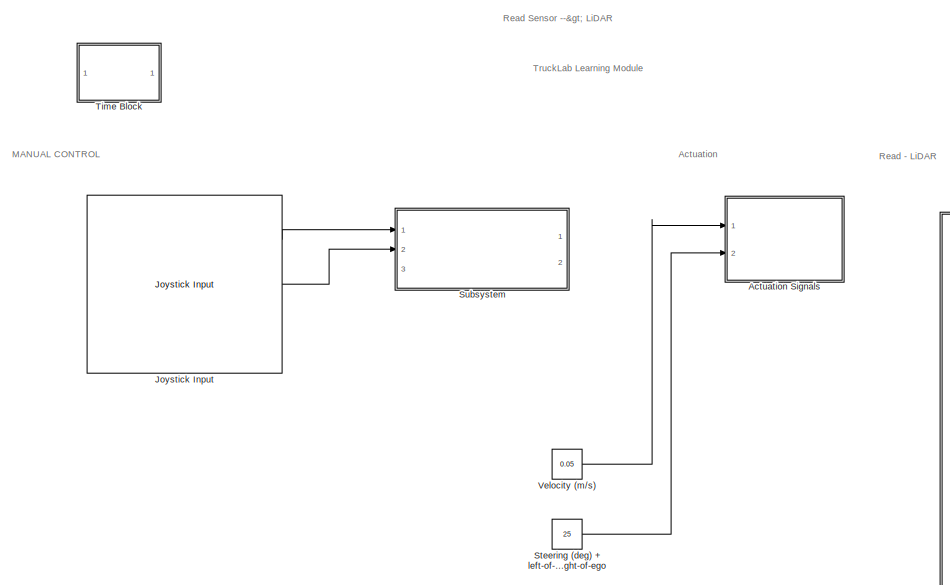
[diagram: root canvas - part 1/2, left side, full height]
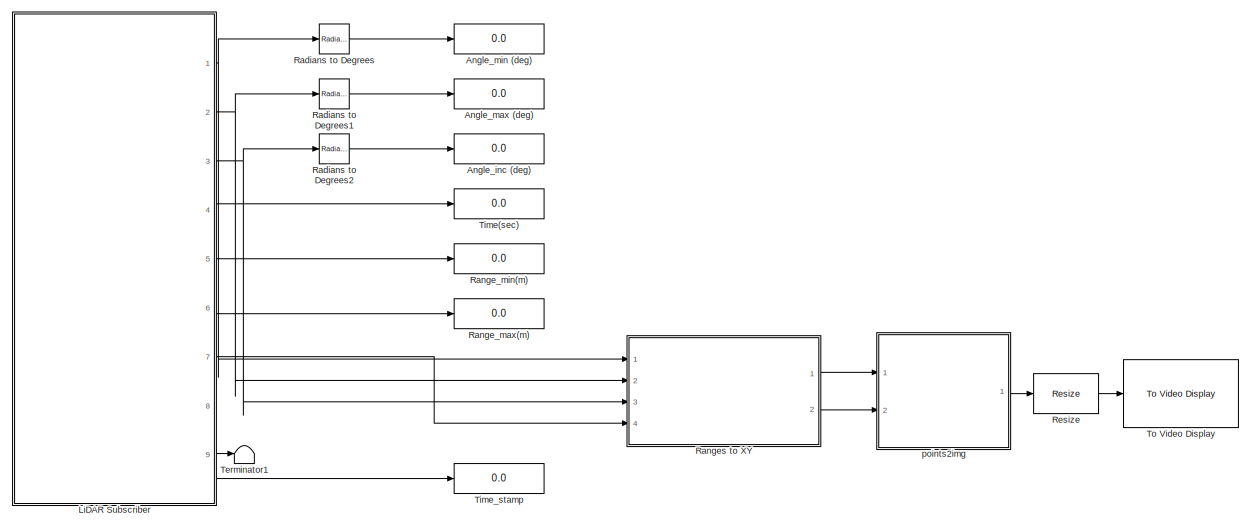
[diagram: root canvas - part 2/2, middle right region]
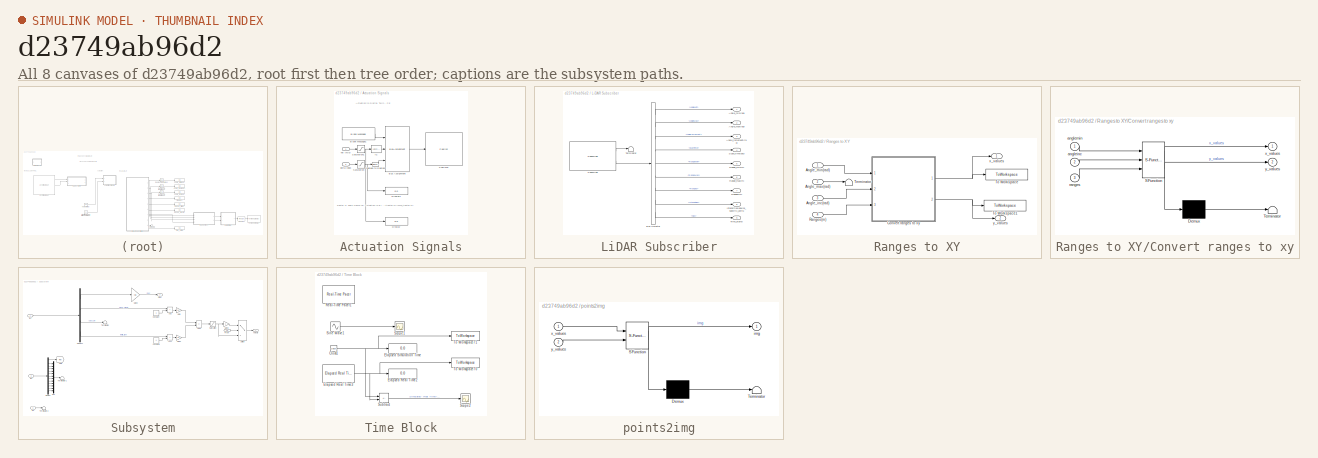
[diagram: thumbnail index - all 8 canvases of the model, root first then tree order]
MODEL slx_d23749ab96d2
KIND model
CONFIG AbsTol = auto
CONFIG EnableMultiTasking = off
CONFIG FixedStep = auto
CONFIG MaxStep = auto
CONFIG MinStep = auto
CONFIG RelTol = 1e-3
CONFIG SampleTimeConstraint = Unconstrained
CONFIG Solver = FixedStepAuto
CONFIG SolverName = FixedStepAuto
CONFIG StartTime = 0.0
CONFIG StopTime = inf
WORKSPACE source: mxarray member
WORKSPACE SL_ROS_VariableLengthArrays_MaxSizes: object (value not decoded)
BLOCK [SubSystem] Actuation Signals
  Ports = [2]
  RequestExecContextInheritance = off
BLOCK [Reference] Actuation Signals/Blank Message1  REF=robotlib/Blank Message
  Ports = [0, 1]
  SourceBlock = robotlib/Blank Message
  SourceProductBaseCode = RR
  SourceType = ROS Blank Message
BLOCK [BusAssignment] Actuation Signals/Bus Assignment
  AssignedSignals = Linear.X,Angular.Z
  DialogController = Simulink.DDGSource_BusAssignment
  Ports = [3, 1]
BLOCK [Reference] Actuation Signals/Degrees to Radians  REF=simulink_extras/Transformations/Degrees to
Radians
  Ports = [1, 1]
  SourceBlock = simulink_extras/Transformations/Degrees to\nRadians
  SourceProductBaseCode = SL
  SourceType = DegreesToRadians
BLOCK [Display] Actuation Signals/Display
  Decimation = 1
  Ports = [1]
BLOCK [Display] Actuation Signals/Display1
  Decimation = 1
  Ports = [1]
BLOCK [InitialCondition] Actuation Signals/IC
  Value = 0
BLOCK [Reference] Actuation Signals/Publish3  REF=robotlib/Publish
  Ports = [1]
  SourceBlock = robotlib/Publish
  SourceProductBaseCode = RR
  SourceType = ROS Publish
BLOCK [Saturate] Actuation Signals/Saturation
  LowerLimit = -25
  UpperLimit = 25
BLOCK [Saturate] Actuation Signals/Saturation1
  LowerLimit = -0.28
  UpperLimit = 0.28
BLOCK [Inport] Actuation Signals/delta (deg)
  Port = 2
BLOCK [Inport] Actuation Signals/vel (m//s)
BLOCK [Display] Angle_inc (deg)
  Decimation = 1
  Ports = [1]
BLOCK [Display] Angle_max (deg)
  Decimation = 1
  Ports = [1]
BLOCK [Display] Angle_min (deg)
  Decimation = 1
  Ports = [1]
BLOCK [Reference] Joystick Input  REF=vrlib/Joystick Input
  Commented = on
  Ports = [0, 3]
  SourceBlock = vrlib/Joystick Input
  SourceProductBaseCode = SL
  SourceType = Joystick Input
BLOCK [SubSystem] LiDAR Subscriber
  Ports = [0, 9]
  RequestExecContextInheritance = off
BLOCK [Outport] LiDAR Subscriber/Angle_increment(rad)
  Port = 3
BLOCK [Outport] LiDAR Subscriber/Angle_max(rad)
  Port = 2
BLOCK [Outport] LiDAR Subscriber/Angle_min(rad)
BLOCK [BusSelector] LiDAR Subscriber/Bus Selector
  OutputSignals = AngleMin,AngleMax,AngleIncrement,ScanTime,RangeMin,RangeMax,Ranges,Intensities,Header.Stamp.Sec
  Ports = [1, 9]
BLOCK [Outport] LiDAR Subscriber/Intensities(device_specific_units)
  Port = 8
BLOCK [Outport] LiDAR Subscriber/Range_max(m)
  Port = 6
BLOCK [Outport] LiDAR Subscriber/Range_min(m)
  Port = 5
BLOCK [Outport] LiDAR Subscriber/Ranges(m)
  Port = 7
BLOCK [Outport] LiDAR Subscriber/Scan_time(sec)
  Port = 4
BLOCK [Reference] LiDAR Subscriber/Subscribe  REF=robotlib/Subscribe
  Ports = [0, 2]
  SourceBlock = robotlib/Subscribe
  SourceProductBaseCode = RR
  SourceType = ROS Subscribe
BLOCK [Terminator] LiDAR Subscriber/Terminator
BLOCK [Outport] LiDAR Subscriber/Time_stamp
  Port = 9
BLOCK [Reference] Radians to Degrees  REF=simulink_extras/Transformations/Radians
to Degrees
  Ports = [1, 1]
  SourceBlock = simulink_extras/Transformations/Radians\nto Degrees
  SourceProductBaseCode = SL
  SourceType = RadiansToDegrees
BLOCK [Reference] Radians to Degrees1  REF=simulink_extras/Transformations/Radians
to Degrees
  Ports = [1, 1]
  SourceBlock = simulink_extras/Transformations/Radians\nto Degrees
  SourceProductBaseCode = SL
  SourceType = RadiansToDegrees
BLOCK [Reference] Radians to Degrees2  REF=simulink_extras/Transformations/Radians
to Degrees
  Ports = [1, 1]
  SourceBlock = simulink_extras/Transformations/Radians\nto Degrees
  SourceProductBaseCode = SL
  SourceType = RadiansToDegrees
BLOCK [Display] Range_max(m)
  Decimation = 1
  Ports = [1]
BLOCK [Display] Range_min(m)
  Decimation = 1
  Ports = [1]
BLOCK [SubSystem] Ranges to XY
  Ports = [4, 2]
  RequestExecContextInheritance = off
BLOCK [Inport] Ranges to XY/Angle_inc(rad)
  Port = 3
BLOCK [Inport] Ranges to XY/Angle_max(rad)
  Port = 2
BLOCK [Inport] Ranges to XY/Angle_min(rad)
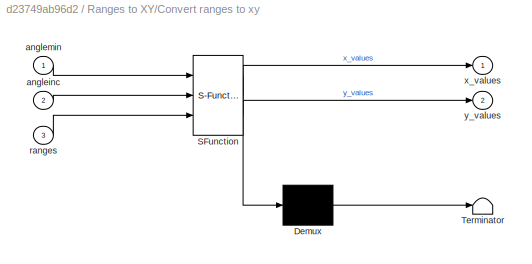
BLOCK [SubSystem] Ranges to XY/Convert ranges to xy
  ErrorFcn = Stateflow.Translate.translate
  PermitHierarchicalResolution = ExplicitOnly
  Ports = [3, 2]
  RequestExecContextInheritance = off
  SFBlockType = MATLAB Function
  TreatAsAtomicUnit = on
BLOCK [Demux] Ranges to XY/Convert ranges to xy/ Demux 
  Outputs = 1
  Ports = [1, 1]
BLOCK [S-Function] Ranges to XY/Convert ranges to xy/ SFunction 
  EnableBusSupport = on
  FunctionName = sf_sfun
  PortCounts = [3 3]
  Ports = [3, 3]
  SFcnIsStateOwnerBlock = off
  SFunctionDeploymentMode = off
  Tag = Stateflow S-Function 2
BLOCK [Terminator] Ranges to XY/Convert ranges to xy/ Terminator 
BLOCK [Inport] Ranges to XY/Convert ranges to xy/angleinc
  Port = 2
BLOCK [Inport] Ranges to XY/Convert ranges to xy/anglemin
BLOCK [Inport] Ranges to XY/Convert ranges to xy/ranges
  Port = 3
BLOCK [Outport] Ranges to XY/Convert ranges to xy/x_values
BLOCK [Outport] Ranges to XY/Convert ranges to xy/y_values
  Port = 2
BLOCK [Inport] Ranges to XY/Ranges(m)
  Port = 4
BLOCK [Terminator] Ranges to XY/Terminator
BLOCK [ToWorkspace] Ranges to XY/To Workspace
  FixptAsFi = on
  MaxDataPoints = inf
  Ports = [1]
  SampleTime = -1
  VariableName = x_values_workspace
BLOCK [ToWorkspace] Ranges to XY/To Workspace1
  FixptAsFi = on
  MaxDataPoints = inf
  Ports = [1]
  SampleTime = -1
  VariableName = y_values_workspace
BLOCK [Outport] Ranges to XY/x_values
BLOCK [Outport] Ranges to XY/y_values
  Port = 2
BLOCK [Reference] Resize  REF=visiongeotforms/Resize
  Ports = [1, 1]
  SourceBlock = visiongeotforms/Resize
  SourceProductBaseCode = VP
  SourceType = Resize
BLOCK [Constant] Steering (deg) + left-of-ego - right-of-ego
  Value = 25
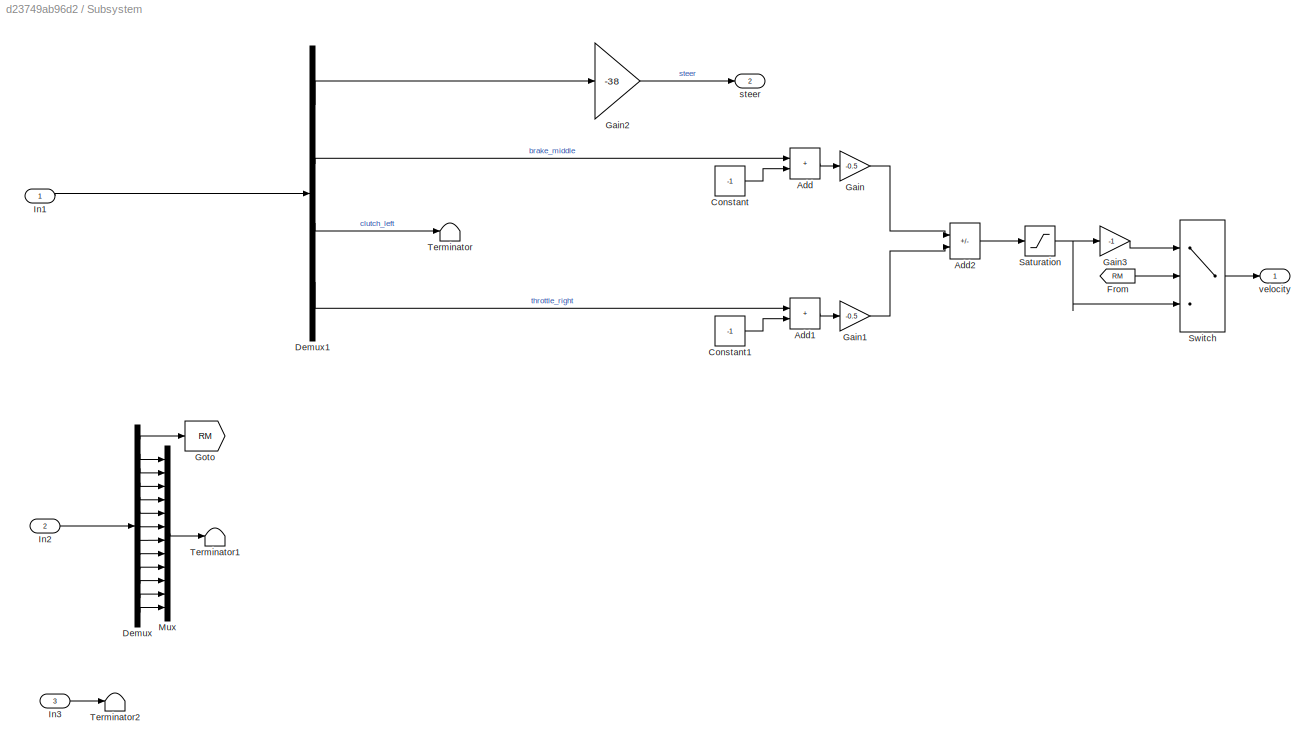
BLOCK [SubSystem] Subsystem
  Commented = on
  Ports = [3, 2]
  RequestExecContextInheritance = off
BLOCK [Sum] Subsystem/Add
  IconShape = rectangular
  Ports = [2, 1]
BLOCK [Sum] Subsystem/Add1
  IconShape = rectangular
  Ports = [2, 1]
BLOCK [Sum] Subsystem/Add2
  IconShape = rectangular
  Inputs = -+
  Ports = [2, 1]
BLOCK [Constant] Subsystem/Constant
  Value = -1
BLOCK [Constant] Subsystem/Constant1
  Value = -1
BLOCK [Demux] Subsystem/Demux
  Outputs = 13
  Ports = [1, 13]
BLOCK [Demux] Subsystem/Demux1
  Ports = [1, 4]
BLOCK [From] Subsystem/From
  GotoTag = RM
BLOCK [Gain] Subsystem/Gain
  Gain = -0.5
BLOCK [Gain] Subsystem/Gain1
  Gain = -0.5
BLOCK [Gain] Subsystem/Gain2
  Gain = -38
BLOCK [Gain] Subsystem/Gain3
  Gain = -1
BLOCK [Goto] Subsystem/Goto
  GotoTag = RM
BLOCK [Inport] Subsystem/In1
BLOCK [Inport] Subsystem/In2
  Port = 2
BLOCK [Inport] Subsystem/In3
  Port = 3
BLOCK [Mux] Subsystem/Mux
  DisplayOption = bar
  Inputs = 12
  Ports = [12, 1]
BLOCK [Saturate] Subsystem/Saturation
  LowerLimit = 0
  UpperLimit = 5
BLOCK [Switch] Subsystem/Switch
  InputSameDT = off
  SaturateOnIntegerOverflow = off
  Threshold = 1
BLOCK [Terminator] Subsystem/Terminator
BLOCK [Terminator] Subsystem/Terminator1
BLOCK [Terminator] Subsystem/Terminator2
BLOCK [Outport] Subsystem/steer
  Port = 2
BLOCK [Outport] Subsystem/velocity
BLOCK [Terminator] Terminator1
BLOCK [SubSystem] Time Block
  Ports = []
  RequestExecContextInheritance = off
BLOCK [Clock] Time Block/Clock1
BLOCK [Display] Time Block/Elapsed Real Time2
  Decimation = 2
  Ports = [1]
BLOCK [Reference] Time Block/Elapsed Real Time3  REF=realtime_pacer_lib/Elapsed Real Time
  Ports = [0, 1]
  SourceBlock = realtime_pacer_lib/Elapsed Real Time
  SourceType = RealTime_Elapsed
BLOCK [Display] Time Block/Elapsed Simulation Time
  Decimation = 2
  Ports = [1]
BLOCK [Reference] Time Block/Real-Time Pacer1  REF=realtime_pacer_lib/Real-Time Pacer
  Ports = []
  SourceBlock = realtime_pacer_lib/Real-Time Pacer
  SourceType = RealTime_Pacer
BLOCK [Scope] Time Block/Scope1
  Floating = off
  NumInputPorts = 1
  Ports = [1]
  ScopeSpecificationString = Simulink.scopes.TimeScopeBlockCfg('CurrentConfiguration', extmgr.ConfigurationSet(extmgr.Configuration('Core','General UI',true),extmgr.Configuration('Core','Source UI',true),extmgr.Configuration('Sources','WiredSimulink',true,'DataLoggingVariableName','ScopeData1','DataLoggingSaveFormat','StructureWithTime','DataLoggingLimitDataPoints',true,'DataLoggingDecimation','1','DataLoggingDecimateData',tr...<+911ch>
BLOCK [Scope] Time Block/Scope2
  Floating = off
  NumInputPorts = 1
  Ports = [1]
  ScopeSpecificationString = Simulink.scopes.TimeScopeBlockCfg('CurrentConfiguration', extmgr.ConfigurationSet(extmgr.Configuration('Core','General UI',true),extmgr.Configuration('Core','Source UI',true),extmgr.Configuration('Sources','WiredSimulink',true,'DataLoggingSaveFormat','StructureWithTime','DataLoggingLimitDataPoints',true,'DataLoggingDecimation','1','DataLoggingDecimateData',true,'DataLoggingVariableName','ScopeData...<+1641ch>
BLOCK [Sin] Time Block/Sine Wave1
  Frequency = 2*pi*0.5
  Ports = [0, 1]
  SampleTime = 0
BLOCK [Sum] Time Block/Subtract
  IconShape = rectangular
  Inputs = +-
  Ports = [2, 1]
BLOCK [ToWorkspace] Time Block/To Workspace70
  FixptAsFi = on
  MaxDataPoints = inf
  Ports = [1]
  SampleTime = -1
  VariableName = time_real
BLOCK [ToWorkspace] Time Block/To Workspace71
  FixptAsFi = on
  MaxDataPoints = inf
  Ports = [1]
  SampleTime = -1
  VariableName = time
BLOCK [Display] Time(sec)
  Decimation = 1
  Ports = [1]
BLOCK [Display] Time_stamp
  Decimation = 1
  Ports = [1]
BLOCK [Reference] To Video Display  REF=visionsinks/To Video Display
  Ports = [1]
  SourceBlock = visionsinks/To Video Display
  SourceProductBaseCode = VP
  SourceType = To Video Display
BLOCK [Constant] Velocity (m//s)
  Value = 0.05
BLOCK [SubSystem] points2img
  ErrorFcn = Stateflow.Translate.translate
  PermitHierarchicalResolution = ExplicitOnly
  Ports = [2, 1]
  RequestExecContextInheritance = off
  SFBlockType = MATLAB Function
  TreatAsAtomicUnit = on
BLOCK [Demux] points2img/ Demux 
  Outputs = 1
  Ports = [1, 1]
BLOCK [S-Function] points2img/ SFunction 
  EnableBusSupport = on
  FunctionName = sf_sfun
  PortCounts = [2 2]
  Ports = [2, 2]
  SFcnIsStateOwnerBlock = off
  SFunctionDeploymentMode = off
  Tag = Stateflow S-Function 3
BLOCK [Terminator] points2img/ Terminator 
BLOCK [Outport] points2img/img
BLOCK [Inport] points2img/x_values
BLOCK [Inport] points2img/y_values
  Port = 2
ANNOTATION (root): TruckLab Learning Module
ANNOTATION (root): Read Sensor --> LiDAR
ANNOTATION (root): Actuation
ANNOTATION (root): MANUAL CONTROL
ANNOTATION (root): Read - LiDAR
ANNOTATION Actuation Signals: Actuation to Digital Twin - PE
ANNOTATION Actuation Signals: Tractor N Topic Name for Actuation (PE) : /tractor"N"/cmd_tractor"N"
LINE Actuation Signals/Blank Message1:1 -> Actuation Signals/Bus Assignment:1
LINE Actuation Signals/Bus Assignment:1 -> Actuation Signals/Publish3:1
LINE Actuation Signals/Degrees to Radians:1 -> Actuation Signals/Bus Assignment:3
LINE Actuation Signals/IC:1 -> Actuation Signals/Bus Assignment:2
NET Actuation Signals/Saturation1:1 -> Actuation Signals/Display:1, Actuation Signals/IC:1
NET Actuation Signals/Saturation:1 -> Actuation Signals/Degrees to Radians:1, Actuation Signals/Display1:1
LINE Actuation Signals/delta (deg):1 -> Actuation Signals/Saturation:1
LINE Actuation Signals/vel (m//s):1 -> Actuation Signals/Saturation1:1
LINE Joystick Input:1 -> Subsystem:1
LINE Joystick Input:2 -> Subsystem:2
LINE LiDAR Subscriber/Bus Selector:1 -> LiDAR Subscriber/Angle_min(rad):1
LINE LiDAR Subscriber/Bus Selector:2 -> LiDAR Subscriber/Angle_max(rad):1
LINE LiDAR Subscriber/Bus Selector:3 -> LiDAR Subscriber/Angle_increment(rad):1
LINE LiDAR Subscriber/Bus Selector:4 -> LiDAR Subscriber/Scan_time(sec):1
LINE LiDAR Subscriber/Bus Selector:5 -> LiDAR Subscriber/Range_min(m):1
LINE LiDAR Subscriber/Bus Selector:6 -> LiDAR Subscriber/Range_max(m):1
LINE LiDAR Subscriber/Bus Selector:7 -> LiDAR Subscriber/Ranges(m):1
LINE LiDAR Subscriber/Bus Selector:8 -> LiDAR Subscriber/Intensities(device_specific_units):1
LINE LiDAR Subscriber/Bus Selector:9 -> LiDAR Subscriber/Time_stamp:1
LINE LiDAR Subscriber/Subscribe:1 -> LiDAR Subscriber/Terminator:1
LINE LiDAR Subscriber/Subscribe:2 -> LiDAR Subscriber/Bus Selector:1
NET LiDAR Subscriber:1 -> Radians to Degrees:1, Ranges to XY:1
NET LiDAR Subscriber:2 -> Radians to Degrees1:1, Ranges to XY:2
NET LiDAR Subscriber:3 -> Radians to Degrees2:1, Ranges to XY:3
LINE LiDAR Subscriber:4 -> Time(sec):1
LINE LiDAR Subscriber:5 -> Range_min(m):1
LINE LiDAR Subscriber:6 -> Range_max(m):1
LINE LiDAR Subscriber:7 -> Ranges to XY:4
LINE LiDAR Subscriber:8 -> Terminator1:1
LINE LiDAR Subscriber:9 -> Time_stamp:1
LINE Radians to Degrees1:1 -> Angle_max (deg):1
LINE Radians to Degrees2:1 -> Angle_inc (deg):1
LINE Radians to Degrees:1 -> Angle_min (deg):1
LINE Ranges to XY/Angle_inc(rad):1 -> Ranges to XY/Convert ranges to xy:2
LINE Ranges to XY/Angle_max(rad):1 -> Ranges to XY/Terminator:1
LINE Ranges to XY/Angle_min(rad):1 -> Ranges to XY/Convert ranges to xy:1
NET Ranges to XY/Convert ranges to xy:1 -> Ranges to XY/To Workspace:1, Ranges to XY/x_values:1
NET Ranges to XY/Convert ranges to xy:2 -> Ranges to XY/To Workspace1:1, Ranges to XY/y_values:1
LINE Ranges to XY/Ranges(m):1 -> Ranges to XY/Convert ranges to xy:3
LINE Ranges to XY:1 -> points2img:1
LINE Ranges to XY:2 -> points2img:2
LINE Resize:1 -> To Video Display:1
LINE Steering (deg) + left-of-ego - right-of-ego:1 -> Actuation Signals:2
LINE Subsystem/Add1:1 -> Subsystem/Gain1:1
LINE Subsystem/Add2:1 -> Subsystem/Saturation:1
LINE Subsystem/Add:1 -> Subsystem/Gain:1
LINE Subsystem/Constant1:1 -> Subsystem/Add1:2
LINE Subsystem/Constant:1 -> Subsystem/Add:2
LINE Subsystem/Demux1:1 -> Subsystem/Gain2:1
LINE Subsystem/Demux1:2 -> Subsystem/Add:1
LINE Subsystem/Demux1:3 -> Subsystem/Terminator:1
LINE Subsystem/Demux1:4 -> Subsystem/Add1:1
LINE Subsystem/Demux:1 -> Subsystem/Goto:1
LINE Subsystem/Demux:10 -> Subsystem/Mux:9
LINE Subsystem/Demux:11 -> Subsystem/Mux:10
LINE Subsystem/Demux:12 -> Subsystem/Mux:11
LINE Subsystem/Demux:13 -> Subsystem/Mux:12
LINE Subsystem/Demux:2 -> Subsystem/Mux:1
LINE Subsystem/Demux:3 -> Subsystem/Mux:2
LINE Subsystem/Demux:4 -> Subsystem/Mux:3
LINE Subsystem/Demux:5 -> Subsystem/Mux:4
LINE Subsystem/Demux:6 -> Subsystem/Mux:5
LINE Subsystem/Demux:7 -> Subsystem/Mux:6
LINE Subsystem/Demux:8 -> Subsystem/Mux:7
LINE Subsystem/Demux:9 -> Subsystem/Mux:8
LINE Subsystem/From:1 -> Subsystem/Switch:2
LINE Subsystem/Gain1:1 -> Subsystem/Add2:2
LINE Subsystem/Gain2:1 -> Subsystem/steer:1
LINE Subsystem/Gain3:1 -> Subsystem/Switch:1
LINE Subsystem/Gain:1 -> Subsystem/Add2:1
LINE Subsystem/In1:1 -> Subsystem/Demux1:1
LINE Subsystem/In2:1 -> Subsystem/Demux:1
LINE Subsystem/In3:1 -> Subsystem/Terminator2:1
LINE Subsystem/Mux:1 -> Subsystem/Terminator1:1
NET Subsystem/Saturation:1 -> Subsystem/Gain3:1, Subsystem/Switch:3
LINE Subsystem/Switch:1 -> Subsystem/velocity:1
NET Time Block/Clock1:1 -> Time Block/Elapsed Simulation Time:1, Time Block/Subtract:1, Time Block/To Workspace71:1
NET Time Block/Elapsed Real Time3:1 -> Time Block/Elapsed Real Time2:1, Time Block/Subtract:2, Time Block/To Workspace70:1
LINE Time Block/Sine Wave1:1 -> Time Block/Scope1:1
LINE Time Block/Subtract:1 -> Time Block/Scope2:1
LINE Velocity (m//s):1 -> Actuation Signals:1
LINE points2img:1 -> Resize:1
note: NET lines group one-source signal fan-out (src -> all destinations, sorted); 1:1 wires keep LINE
CHART Ranges to XY/Convert ranges to xy states=1 transitions=1
  STATE_LABEL 'eML_blk_kernel()'
  STATE_LABEL 'SCRIPT:\nfunction [x_values, y_values] = fcn(anglemin, angleinc, ranges)\nangle_min = double(anglemin);\nangle_inc = double(angleinc);\nangles=double(zeros(numel(ranges),1));\nfor i=1:numel(ranges)\n    angles(i) = double(angle_min) + double(i-1)*(angle_inc);\nend\n\nx_values = ranges.*cos(angles);\ny_values = ranges.*sin(angles);\n'
CHART points2img states=1 transitions=1
  STATE_LABEL 'eML_blk_kernel()'
  STATE_LABEL 'SCRIPT:\nfunction img = fcn(x_values, y_values)\nimg = ones(800, 800)*255;\ndelta = 2;\ndelta_ego = 5;\n% iterate over these points, and set up a primitive grid map\nfor i=1:numel(x_values)\n    % (800, 800) pixels = (8m, 8m)\n    m_to_px = 100;\n    x = x_values(i);\n    y = y_values(i);\n    \n    px_x = floor(x * m_to_px);\n    px_y = floor(y * m_to_px);\n    \n    ind_min_x = max(1, px_x-delta+400);\n    ind_...<+256ch>'
CHART  states=0 transitions=0
CHART  states=0 transitions=0
